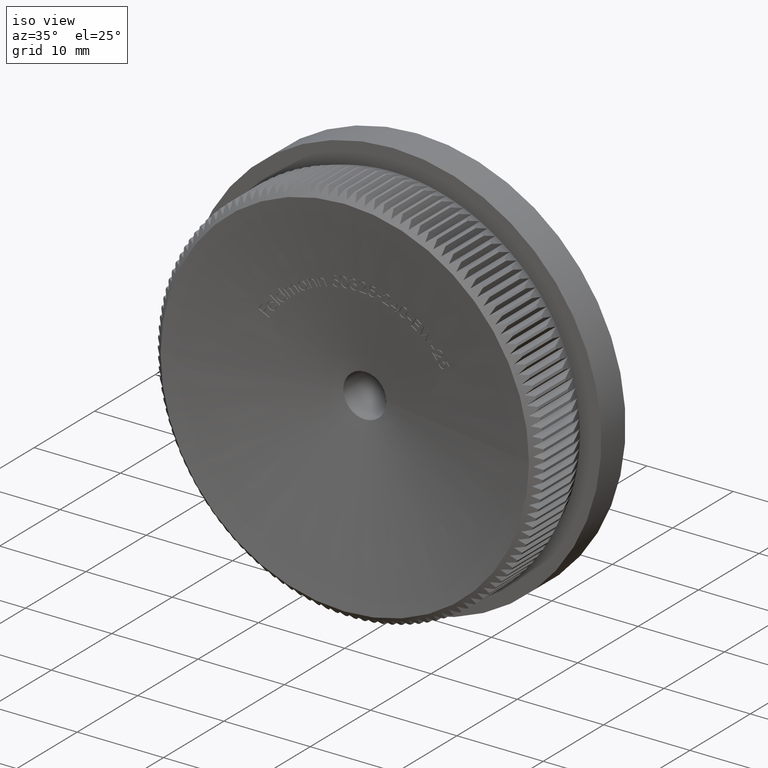
[diagram: clean part render]
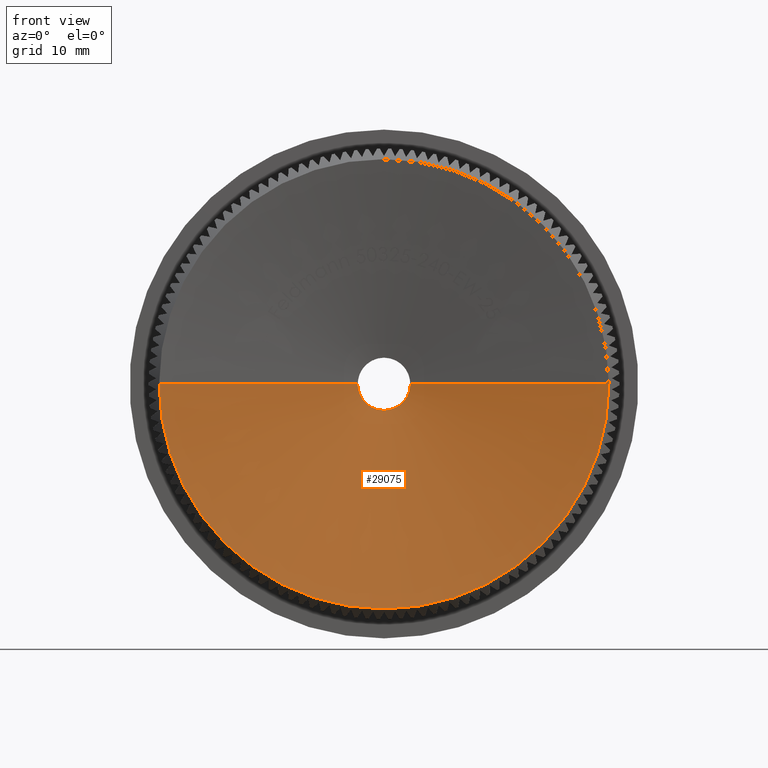
[diagram: tour spotlight — one face highlighted and labeled with its STEP entity id]
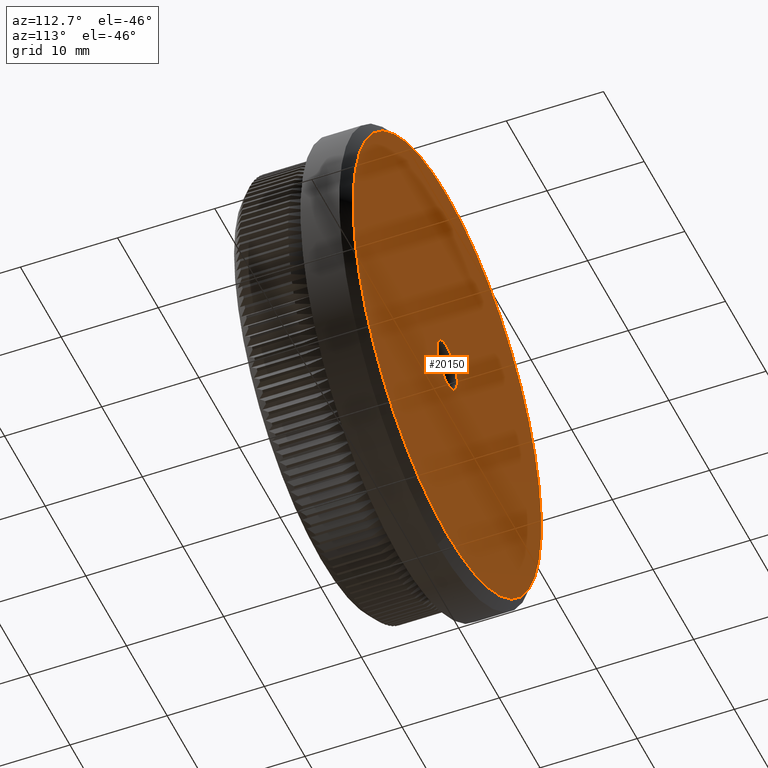
[diagram: tour spotlight — one face highlighted and labeled with its STEP entity id]
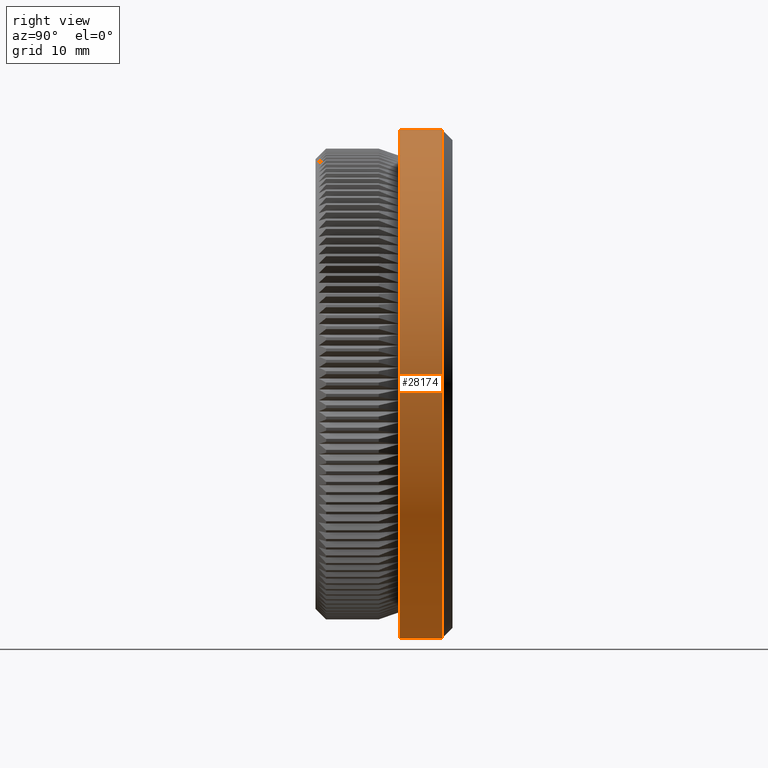
[diagram: tour spotlight — one face highlighted and labeled with its STEP entity id]
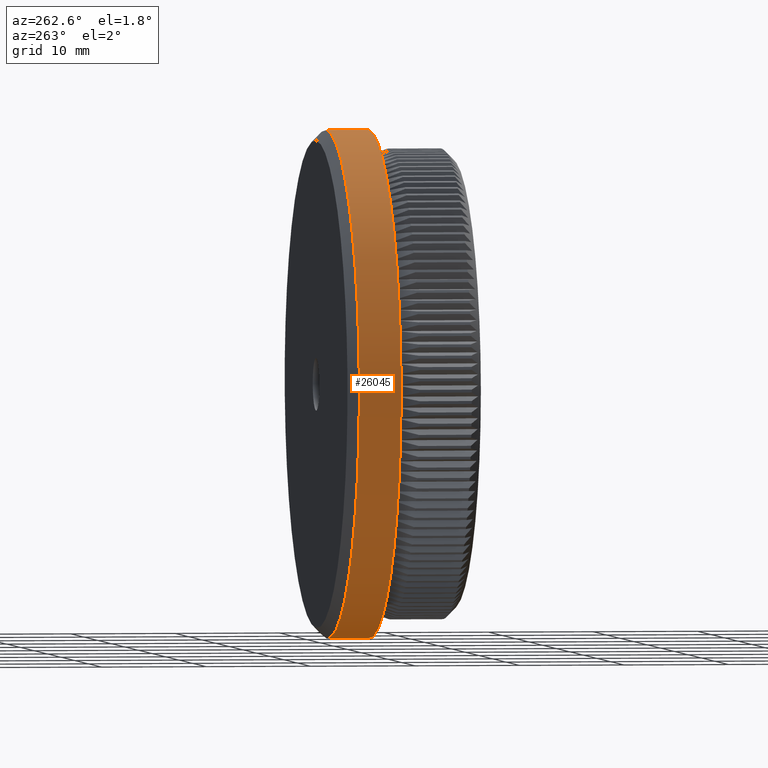
[diagram: tour spotlight — one face highlighted and labeled with its STEP entity id]
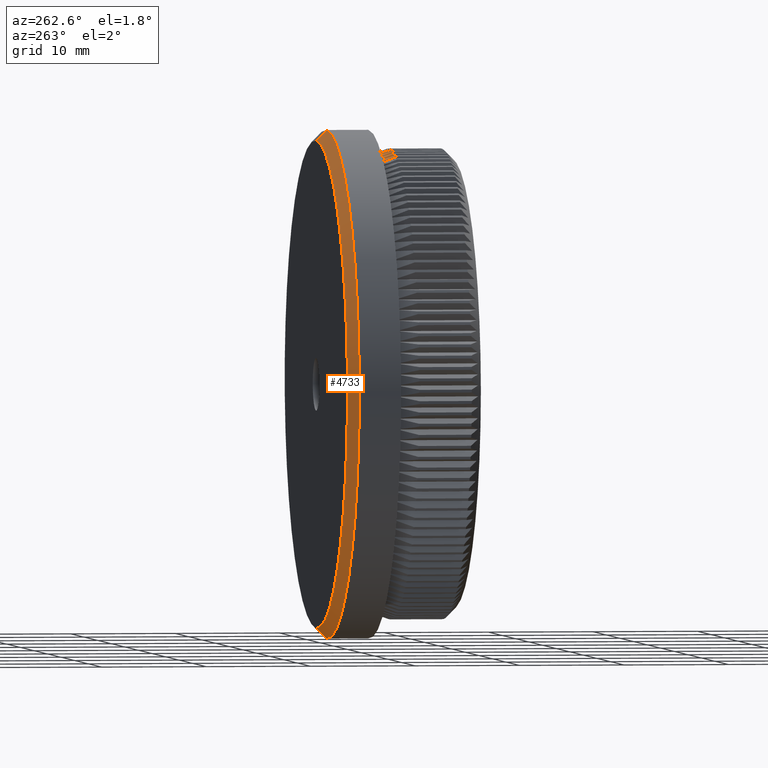
[diagram: tour spotlight — one face highlighted and labeled with its STEP entity id]
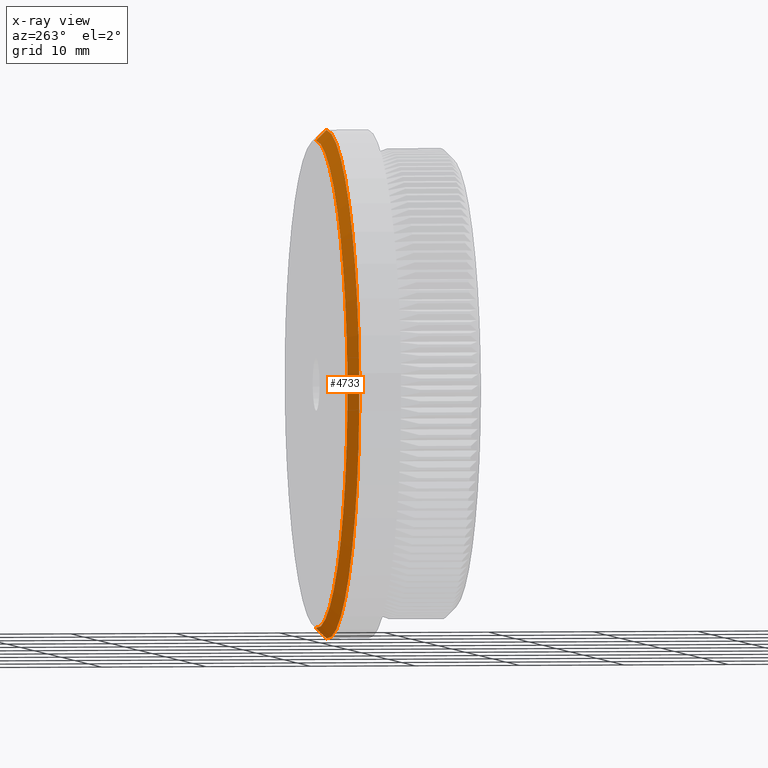
[diagram: x-ray of the same camera — body ghosted, this tour face saturated]
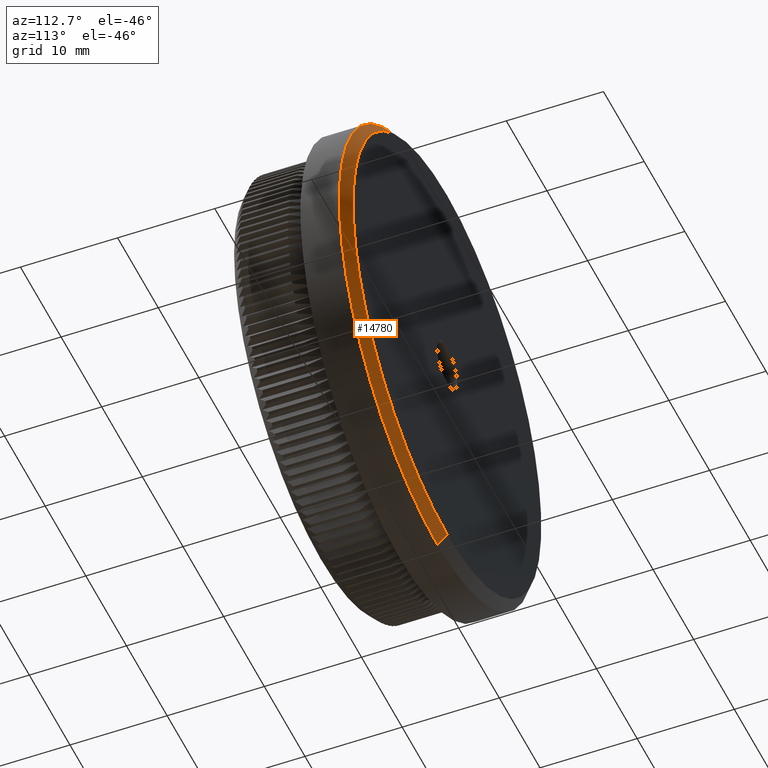
[diagram: tour spotlight — one face highlighted and labeled with its STEP entity id]
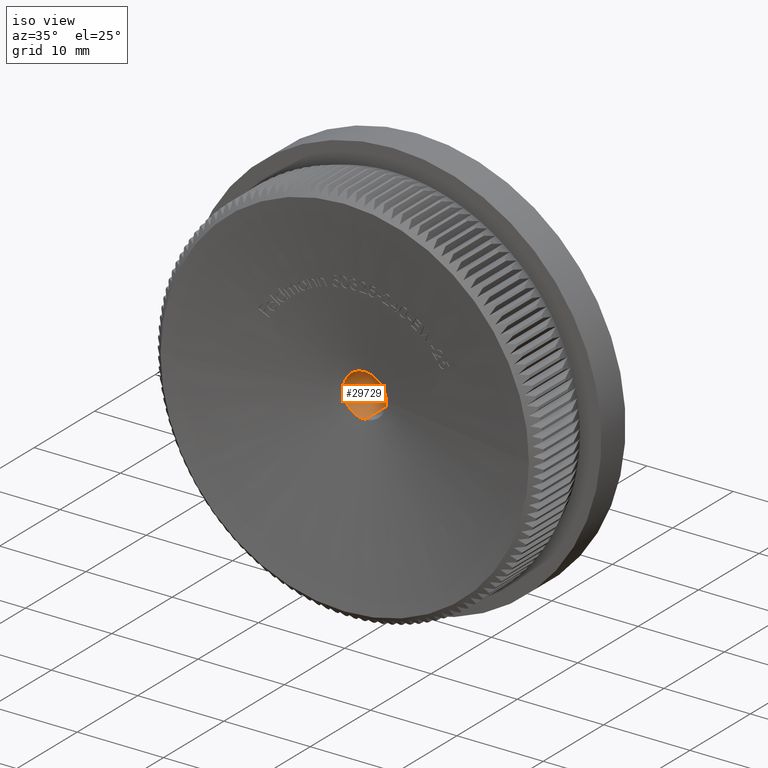
[diagram: tour spotlight — one face highlighted and labeled with its STEP entity id]
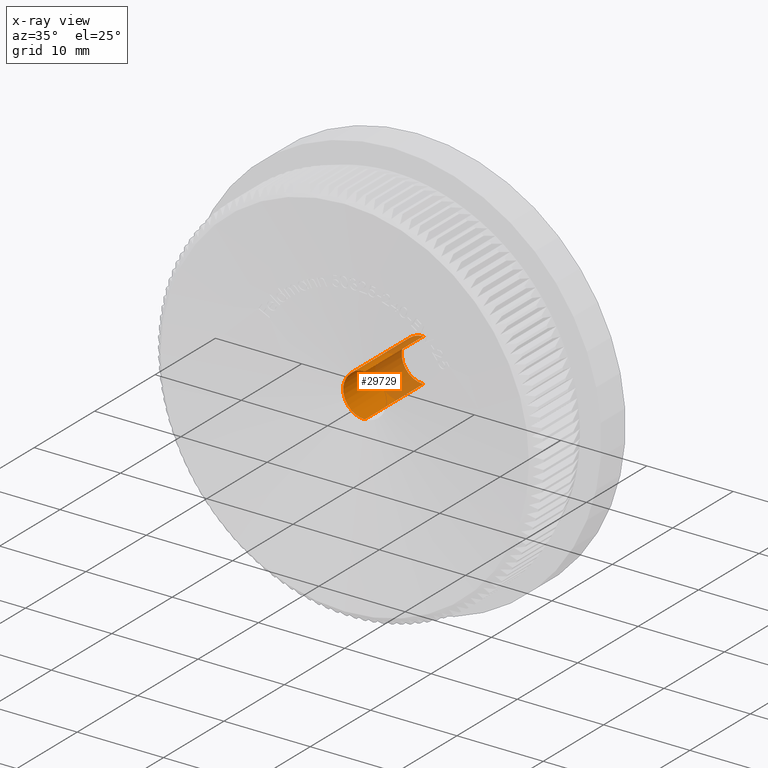
[diagram: x-ray of the same camera — body ghosted, this tour face saturated]
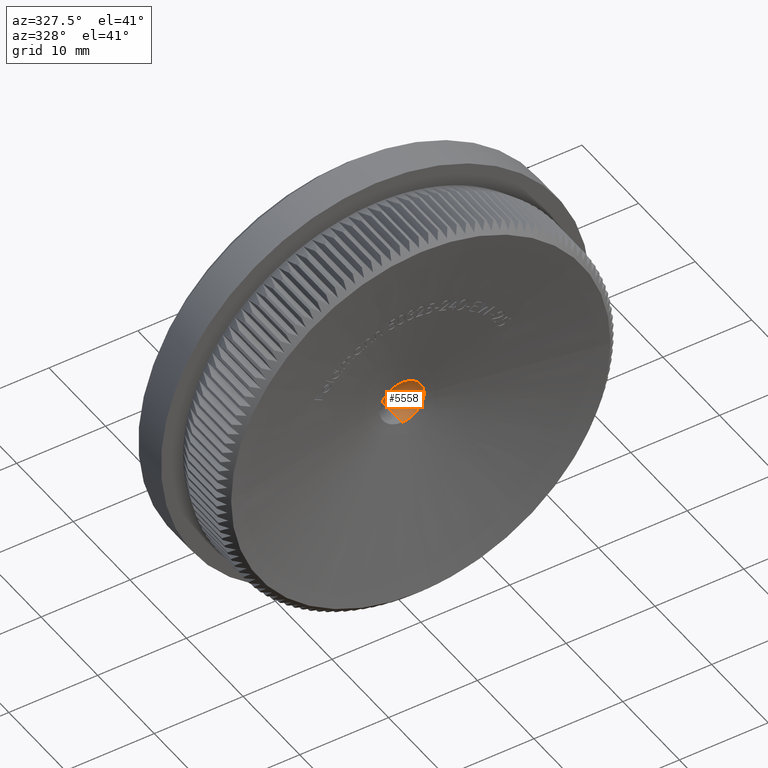
[diagram: tour spotlight — one face highlighted and labeled with its STEP entity id]
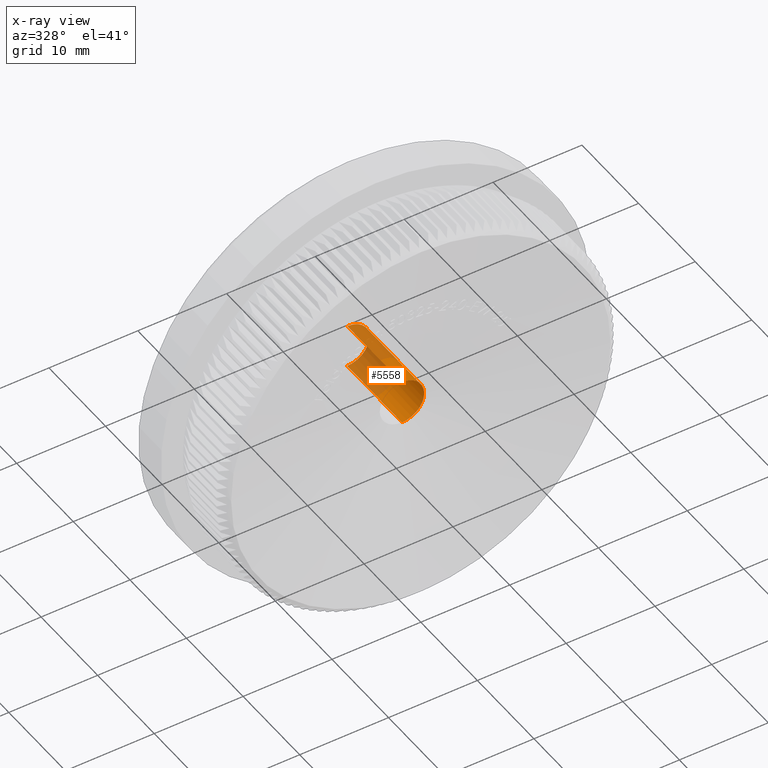
[diagram: x-ray of the same camera — body ghosted, this tour face saturated]
A machine part: a face-by-face anatomy tour. The part has 826 B-rep faces; the first image is the clean iso view, then the 8 largest visible faces are spotlighted one at a time (largest first), each with its STEP entity span.

Face 1 — front view, entity #29075. In plain terms, the highlighted conical surface has half-angle 80 deg.
Definition (entity closure, byte-faithful):
#206 = CARTESIAN_POINT ( 'NONE',  ( -21.35000000000002300, 1.243352651957104800E-015, 2.614620916179602000E-015 ) ) ;
#921 = DIRECTION ( 'NONE',  ( 1.000000000000000000, -9.759158373129756900E-018, 0.0000000000000000000 ) ) ;
#985 = CARTESIAN_POINT ( 'NONE',  ( 3.243713523407466100E-017, 3.323763586354433500, 0.0000000000000000000 ) ) ;
#1127 = VERTEX_POINT ( 'NONE', #9074 ) ;
#1253 = CARTESIAN_POINT ( 'NONE',  ( 3.243713523407466100E-017, 3.323763586354433500, 0.0000000000000000000 ) ) ;
#3390 = CARTESIAN_POINT ( 'NONE',  ( 1.010067641865872300E-032, 1.034994620690784200E-015, 0.0000000000000000000 ) ) ;
#5307 = VERTEX_POINT ( 'NONE', #7353 ) ;
#5603 = DIRECTION ( 'NONE',  ( 1.000000000000000000, -9.759158373129756900E-018, 0.0000000000000000000 ) ) ;
#7288 = EDGE_LOOP ( 'NONE', ( #12962, #8567, #8633, #19425, #8378, #17880 ) ) ;
#7353 = CARTESIAN_POINT ( 'NONE',  ( -2.500000000000000000, 3.323763586354433500, 1.460391307983221100E-015 ) ) ;
#7676 = CARTESIAN_POINT ( 'NONE',  ( 2.675853256136968700E-015, 1.034994620690784200E-015, -21.35000000000002300 ) ) ;
#7781 = CARTESIAN_POINT ( 'NONE',  ( 1.010067641865872300E-032, 1.034994620690784200E-015, 0.0000000000000000000 ) ) ;
#8295 = DIRECTION ( 'NONE',  ( 9.759158373129756900E-018, 1.000000000000000000, 0.0000000000000000000 ) ) ;
#8378 = ORIENTED_EDGE ( 'NONE', *, *, #27260, .T. ) ;
#8456 = DIRECTION ( 'NONE',  ( 9.759158373129756900E-018, 1.000000000000000000, 0.0000000000000000000 ) ) ;
#8567 = ORIENTED_EDGE ( 'NONE', *, *, #27372, .T. ) ;
#8618 = CARTESIAN_POINT ( 'NONE',  ( 2.500000000000000000, 3.323763586354433500, 0.0000000000000000000 ) ) ;
#8633 = ORIENTED_EDGE ( 'NONE', *, *, #11135, .T. ) ;
#9007 = AXIS2_PLACEMENT_3D ( 'NONE', #7781, #26507, #28884 ) ;
#9074 = CARTESIAN_POINT ( 'NONE',  ( -21.35000000000002300, 1.243352651957104800E-015, 2.614620916179602000E-015 ) ) ;
#9105 = VERTEX_POINT ( 'NONE', #26876 ) ;
#10570 = AXIS2_PLACEMENT_3D ( 'NONE', #985, #8295, #15309 ) ;
#10572 = VERTEX_POINT ( 'NONE', #8618 ) ;
#11075 = AXIS2_PLACEMENT_3D ( 'NONE', #1253, #8456, #17771 ) ;
#11135 = EDGE_CURVE ( 'NONE', #5307, #1127, #29184, .T. ) ;
#11560 = CARTESIAN_POINT ( 'NONE',  ( 21.35000000000002300, 8.266365894244636300E-016, 0.0000000000000000000 ) ) ;
#11836 = VERTEX_POINT ( 'NONE', #7676 ) ;
#12143 = EDGE_CURVE ( 'NONE', #10572, #14925, #29872, .T. ) ;
#12174 = CARTESIAN_POINT ( 'NONE',  ( 21.35000000000002300, 8.266365894244636300E-016, 0.0000000000000000000 ) ) ;
#12462 = AXIS2_PLACEMENT_3D ( 'NONE', #3390, #17344, #921 ) ;
#12508 = CIRCLE ( 'NONE', #11075, 2.500000000000000000 ) ;
#12601 = EDGE_CURVE ( 'NONE', #1127, #11836, #23237, .T. ) ;
#12962 = ORIENTED_EDGE ( 'NONE', *, *, #13576, .T. ) ;
#13576 = EDGE_CURVE ( 'NONE', #10572, #9105, #16603, .T. ) ;
#14925 = VERTEX_POINT ( 'NONE', #12174 ) ;
#15309 = DIRECTION ( 'NONE',  ( 1.000000000000000000, 0.0000000000000000000, 0.0000000000000000000 ) ) ;
#16603 = CIRCLE ( 'NONE', #10570, 2.500000000000000000 ) ;
#17284 = CONICAL_SURFACE ( 'NONE', #12462, 21.35000000000002300, 1.396263401595470700 ) ;
#17344 = DIRECTION ( 'NONE',  ( -9.759158373129756900E-018, -1.000000000000000000, -0.0000000000000000000 ) ) ;
#17723 = CIRCLE ( 'NONE', #23779, 21.35000000000002300 ) ;
#17771 = DIRECTION ( 'NONE',  ( 1.000000000000000000, 0.0000000000000000000, 0.0000000000000000000 ) ) ;
#17880 = ORIENTED_EDGE ( 'NONE', *, *, #12143, .F. ) ;
#18614 = DIRECTION ( 'NONE',  ( 0.9848077530122093500, -0.1736481776669234500, 0.0000000000000000000 ) ) ;
#19425 = ORIENTED_EDGE ( 'NONE', *, *, #12601, .T. ) ;
#19745 = DIRECTION ( 'NONE',  ( -9.759158373129756900E-018, -1.000000000000000000, -0.0000000000000000000 ) ) ;
#21046 = VECTOR ( 'NONE', #18614, 999.9999999999998900 ) ;
#22931 = VECTOR ( 'NONE', #25836, 999.9999999999998900 ) ;
#23237 = CIRCLE ( 'NONE', #9007, 21.35000000000002300 ) ;
#23779 = AXIS2_PLACEMENT_3D ( 'NONE', #26776, #19745, #5603 ) ;
#25049 = FACE_OUTER_BOUND ( 'NONE', #7288, .T. ) ;
#25836 = DIRECTION ( 'NONE',  ( -0.9848077530122093500, -0.1736481776669234500, 1.206041662501899300E-016 ) ) ;
#26507 = DIRECTION ( 'NONE',  ( -9.759158373129756900E-018, -1.000000000000000000, -0.0000000000000000000 ) ) ;
#26776 = CARTESIAN_POINT ( 'NONE',  ( 1.010067641865872300E-032, 1.034994620690784200E-015, 0.0000000000000000000 ) ) ;
#26876 = CARTESIAN_POINT ( 'NONE',  ( 3.061616997868382600E-016, 3.323763586354433500, -2.500000000000000000 ) ) ;
#27260 = EDGE_CURVE ( 'NONE', #11836, #14925, #17723, .T. ) ;
#27372 = EDGE_CURVE ( 'NONE', #9105, #5307, #12508, .T. ) ;
#28884 = DIRECTION ( 'NONE',  ( 1.000000000000000000, -9.759158373129756900E-018, 0.0000000000000000000 ) ) ;
#29075 = ADVANCED_FACE ( 'NONE', ( #25049 ), #17284, .F. ) ;
#29184 = LINE ( 'NONE', #206, #22931 ) ;
#29872 = LINE ( 'NONE', #11560, #21046 ) ;

Face 2 — auxiliary view, entity #20150. In plain terms, the highlighted planar face has unit normal (0, 1, 0).
Definition (entity closure, byte-faithful):
#259 = AXIS2_PLACEMENT_3D ( 'NONE', #2876, #14330, #19301 ) ;
#802 = VERTEX_POINT ( 'NONE', #29155 ) ;
#2750 = VERTEX_POINT ( 'NONE', #24608 ) ;
#2866 = CARTESIAN_POINT ( 'NONE',  ( 2.896289679983490000E-015, 13.00000000000000000, 23.14999999999999900 ) ) ;
#2876 = CARTESIAN_POINT ( 'NONE',  ( 0.0000000000000000000, 13.00000000000000000, 0.0000000000000000000 ) ) ;
#4059 = CIRCLE ( 'NONE', #5634, 2.500000000000000000 ) ;
#4800 = DIRECTION ( 'NONE',  ( 0.0000000000000000000, 0.0000000000000000000, 1.000000000000000000 ) ) ;
#5429 = ORIENTED_EDGE ( 'NONE', *, *, #30285, .F. ) ;
#5634 = AXIS2_PLACEMENT_3D ( 'NONE', #17132, #14936, #28810 ) ;
#8510 = CARTESIAN_POINT ( 'NONE',  ( 0.0000000000000000000, 13.00000000000000000, 2.500000000000000000 ) ) ;
#11080 = ORIENTED_EDGE ( 'NONE', *, *, #21549, .T. ) ;
#11191 = EDGE_CURVE ( 'NONE', #16712, #802, #4059, .T. ) ;
#11490 = CARTESIAN_POINT ( 'NONE',  ( 0.0000000000000000000, 13.00000000000000000, 0.0000000000000000000 ) ) ;
#12372 = EDGE_LOOP ( 'NONE', ( #11080, #19589 ) ) ;
#13981 = DIRECTION ( 'NONE',  ( 0.0000000000000000000, 1.000000000000000000, 0.0000000000000000000 ) ) ;
#14330 = DIRECTION ( 'NONE',  ( 0.0000000000000000000, 1.000000000000000000, 0.0000000000000000000 ) ) ;
#14742 = DIRECTION ( 'NONE',  ( 0.0000000000000000000, 1.000000000000000000, 0.0000000000000000000 ) ) ;
#14936 = DIRECTION ( 'NONE',  ( 0.0000000000000000000, 1.000000000000000000, 0.0000000000000000000 ) ) ;
#15753 = CIRCLE ( 'NONE', #28172, 2.500000000000000000 ) ;
#16221 = CIRCLE ( 'NONE', #27124, 23.14999999999999900 ) ;
#16266 = PLANE ( 'NONE',  #17844 ) ;
#16712 = VERTEX_POINT ( 'NONE', #8510 ) ;
#17132 = CARTESIAN_POINT ( 'NONE',  ( 0.0000000000000000000, 13.00000000000000000, 0.0000000000000000000 ) ) ;
#17844 = AXIS2_PLACEMENT_3D ( 'NONE', #11490, #13981, #27951 ) ;
#18959 = DIRECTION ( 'NONE',  ( 0.0000000000000000000, 1.000000000000000000, 0.0000000000000000000 ) ) ;
#19301 = DIRECTION ( 'NONE',  ( 0.0000000000000000000, 0.0000000000000000000, 1.000000000000000000 ) ) ;
#19589 = ORIENTED_EDGE ( 'NONE', *, *, #27647, .T. ) ;
#20150 = ADVANCED_FACE ( 'NONE', ( #25696, #23115 ), #16266, .T. ) ;
#21549 = EDGE_CURVE ( 'NONE', #2750, #22447, #23058, .T. ) ;
#21896 = DIRECTION ( 'NONE',  ( 0.0000000000000000000, 0.0000000000000000000, 1.000000000000000000 ) ) ;
#22447 = VERTEX_POINT ( 'NONE', #2866 ) ;
#23058 = CIRCLE ( 'NONE', #259, 23.14999999999999900 ) ;
#23115 = FACE_OUTER_BOUND ( 'NONE', #12372, .T. ) ;
#24363 = CARTESIAN_POINT ( 'NONE',  ( 0.0000000000000000000, 13.00000000000000000, 0.0000000000000000000 ) ) ;
#24369 = ORIENTED_EDGE ( 'NONE', *, *, #11191, .F. ) ;
#24608 = CARTESIAN_POINT ( 'NONE',  ( 0.0000000000000000000, 13.00000000000000000, -23.14999999999999900 ) ) ;
#25696 = FACE_BOUND ( 'NONE', #28997, .T. ) ;
#26490 = CARTESIAN_POINT ( 'NONE',  ( 0.0000000000000000000, 13.00000000000000000, 0.0000000000000000000 ) ) ;
#27124 = AXIS2_PLACEMENT_3D ( 'NONE', #24363, #14742, #21896 ) ;
#27647 = EDGE_CURVE ( 'NONE', #22447, #2750, #16221, .T. ) ;
#27951 = DIRECTION ( 'NONE',  ( 0.0000000000000000000, -0.0000000000000000000, 1.000000000000000000 ) ) ;
#28172 = AXIS2_PLACEMENT_3D ( 'NONE', #26490, #18959, #4800 ) ;
#28810 = DIRECTION ( 'NONE',  ( 0.0000000000000000000, 0.0000000000000000000, 1.000000000000000000 ) ) ;
#28997 = EDGE_LOOP ( 'NONE', ( #24369, #5429 ) ) ;
#29155 = CARTESIAN_POINT ( 'NONE',  ( 3.061616997868382600E-016, 13.00000000000000000, -2.500000000000000000 ) ) ;
#30285 = EDGE_CURVE ( 'NONE', #802, #16712, #15753, .T. ) ;

Face 3 — right view, entity #28174. In plain terms, the highlighted cylindrical surface (partial cylindrical patch) has radius 24.15 mm, axis along (-0, -1, -0).
Definition (entity closure, byte-faithful):
#1197 = EDGE_LOOP ( 'NONE', ( #15030, #30284, #26270, #27716 ) ) ;
#2500 = DIRECTION ( 'NONE',  ( -0.0000000000000000000, -1.000000000000000000, -0.0000000000000000000 ) ) ;
#2584 = AXIS2_PLACEMENT_3D ( 'NONE', #24906, #10731, #6001 ) ;
#3276 = DIRECTION ( 'NONE',  ( -0.0000000000000000000, -1.000000000000000000, -0.0000000000000000000 ) ) ;
#3595 = DIRECTION ( 'NONE',  ( -0.0000000000000000000, -1.000000000000000000, -0.0000000000000000000 ) ) ;
#4071 = EDGE_CURVE ( 'NONE', #23029, #4323, #5463, .T. ) ;
#4323 = VERTEX_POINT ( 'NONE', #5087 ) ;
#5087 = CARTESIAN_POINT ( 'NONE',  ( 0.0000000000000000000, 8.000000000000000000, -24.14999999999999900 ) ) ;
#5168 = CARTESIAN_POINT ( 'NONE',  ( 0.0000000000000000000, 0.0000000000000000000, 0.0000000000000000000 ) ) ;
#5463 = LINE ( 'NONE', #19500, #30565 ) ;
#6001 = DIRECTION ( 'NONE',  ( 0.0000000000000000000, 0.0000000000000000000, -1.000000000000000000 ) ) ;
#6379 = LINE ( 'NONE', #16672, #23019 ) ;
#6617 = CYLINDRICAL_SURFACE ( 'NONE', #25179, 24.14999999999999900 ) ;
#7480 = VERTEX_POINT ( 'NONE', #28310 ) ;
#8257 = EDGE_CURVE ( 'NONE', #15284, #7480, #6379, .T. ) ;
#8389 = EDGE_CURVE ( 'NONE', #4323, #7480, #28199, .T. ) ;
#9985 = DIRECTION ( 'NONE',  ( 0.0000000000000000000, 0.0000000000000000000, -1.000000000000000000 ) ) ;
#10731 = DIRECTION ( 'NONE',  ( -0.0000000000000000000, -1.000000000000000000, -0.0000000000000000000 ) ) ;
#15030 = ORIENTED_EDGE ( 'NONE', *, *, #15153, .T. ) ;
#15153 = EDGE_CURVE ( 'NONE', #23029, #15284, #17280, .T. ) ;
#15284 = VERTEX_POINT ( 'NONE', #15871 ) ;
#15871 = CARTESIAN_POINT ( 'NONE',  ( 2.957522019940857900E-015, 11.99999999999999500, 24.14999999999999900 ) ) ;
#16672 = CARTESIAN_POINT ( 'NONE',  ( 2.957522019940857900E-015, 0.0000000000000000000, 24.14999999999999900 ) ) ;
#17280 = CIRCLE ( 'NONE', #30223, 24.14999999999999900 ) ;
#19500 = CARTESIAN_POINT ( 'NONE',  ( 0.0000000000000000000, 0.0000000000000000000, -24.14999999999999900 ) ) ;
#23019 = VECTOR ( 'NONE', #2500, 1000.000000000000000 ) ;
#23029 = VERTEX_POINT ( 'NONE', #29446 ) ;
#24906 = CARTESIAN_POINT ( 'NONE',  ( 0.0000000000000000000, 8.000000000000000000, 0.0000000000000000000 ) ) ;
#24980 = DIRECTION ( 'NONE',  ( 0.0000000000000000000, 0.0000000000000000000, 1.000000000000000000 ) ) ;
#25179 = AXIS2_PLACEMENT_3D ( 'NONE', #5168, #26552, #9985 ) ;
#26270 = ORIENTED_EDGE ( 'NONE', *, *, #8389, .F. ) ;
#26552 = DIRECTION ( 'NONE',  ( -0.0000000000000000000, -1.000000000000000000, -0.0000000000000000000 ) ) ;
#27716 = ORIENTED_EDGE ( 'NONE', *, *, #4071, .F. ) ;
#28174 = ADVANCED_FACE ( 'NONE', ( #28442 ), #6617, .T. ) ;
#28199 = CIRCLE ( 'NONE', #2584, 24.14999999999999900 ) ;
#28310 = CARTESIAN_POINT ( 'NONE',  ( 2.957522019940857900E-015, 8.000000000000000000, 24.14999999999999900 ) ) ;
#28442 = FACE_OUTER_BOUND ( 'NONE', #1197, .T. ) ;
#29309 = CARTESIAN_POINT ( 'NONE',  ( 0.0000000000000000000, 11.99999999999999500, 0.0000000000000000000 ) ) ;
#29446 = CARTESIAN_POINT ( 'NONE',  ( 0.0000000000000000000, 11.99999999999999500, -24.14999999999999900 ) ) ;
#30223 = AXIS2_PLACEMENT_3D ( 'NONE', #29309, #3595, #24980 ) ;
#30284 = ORIENTED_EDGE ( 'NONE', *, *, #8257, .T. ) ;
#30565 = VECTOR ( 'NONE', #3276, 1000.000000000000000 ) ;

Face 4 — auxiliary view, entity #26045. In plain terms, the highlighted cylindrical surface (partial cylindrical patch) has radius 24.15 mm, axis along (-0, -1, -0).
Definition (entity closure, byte-faithful):
#1015 = AXIS2_PLACEMENT_3D ( 'NONE', #25763, #11558, #23786 ) ;
#2500 = DIRECTION ( 'NONE',  ( -0.0000000000000000000, -1.000000000000000000, -0.0000000000000000000 ) ) ;
#3276 = DIRECTION ( 'NONE',  ( -0.0000000000000000000, -1.000000000000000000, -0.0000000000000000000 ) ) ;
#3652 = EDGE_LOOP ( 'NONE', ( #17181, #23980, #28447, #8383 ) ) ;
#4071 = EDGE_CURVE ( 'NONE', #23029, #4323, #5463, .T. ) ;
#4323 = VERTEX_POINT ( 'NONE', #5087 ) ;
#4778 = AXIS2_PLACEMENT_3D ( 'NONE', #25253, #15828, #13633 ) ;
#5087 = CARTESIAN_POINT ( 'NONE',  ( 0.0000000000000000000, 8.000000000000000000, -24.14999999999999900 ) ) ;
#5097 = EDGE_CURVE ( 'NONE', #15284, #23029, #18716, .T. ) ;
#5463 = LINE ( 'NONE', #19500, #30565 ) ;
#6379 = LINE ( 'NONE', #16672, #23019 ) ;
#7480 = VERTEX_POINT ( 'NONE', #28310 ) ;
#8257 = EDGE_CURVE ( 'NONE', #15284, #7480, #6379, .T. ) ;
#8383 = ORIENTED_EDGE ( 'NONE', *, *, #19274, .F. ) ;
#8877 = CYLINDRICAL_SURFACE ( 'NONE', #17214, 24.14999999999999900 ) ;
#10566 = CARTESIAN_POINT ( 'NONE',  ( 0.0000000000000000000, 0.0000000000000000000, 0.0000000000000000000 ) ) ;
#11558 = DIRECTION ( 'NONE',  ( -0.0000000000000000000, -1.000000000000000000, -0.0000000000000000000 ) ) ;
#13633 = DIRECTION ( 'NONE',  ( 0.0000000000000000000, 0.0000000000000000000, 1.000000000000000000 ) ) ;
#14072 = FACE_OUTER_BOUND ( 'NONE', #3652, .T. ) ;
#15284 = VERTEX_POINT ( 'NONE', #15871 ) ;
#15828 = DIRECTION ( 'NONE',  ( -0.0000000000000000000, -1.000000000000000000, -0.0000000000000000000 ) ) ;
#15836 = DIRECTION ( 'NONE',  ( 0.0000000000000000000, 0.0000000000000000000, -1.000000000000000000 ) ) ;
#15871 = CARTESIAN_POINT ( 'NONE',  ( 2.957522019940857900E-015, 11.99999999999999500, 24.14999999999999900 ) ) ;
#16672 = CARTESIAN_POINT ( 'NONE',  ( 2.957522019940857900E-015, 0.0000000000000000000, 24.14999999999999900 ) ) ;
#17181 = ORIENTED_EDGE ( 'NONE', *, *, #8257, .F. ) ;
#17214 = AXIS2_PLACEMENT_3D ( 'NONE', #10566, #24851, #15836 ) ;
#18716 = CIRCLE ( 'NONE', #4778, 24.14999999999999900 ) ;
#19274 = EDGE_CURVE ( 'NONE', #7480, #4323, #20158, .T. ) ;
#19500 = CARTESIAN_POINT ( 'NONE',  ( 0.0000000000000000000, 0.0000000000000000000, -24.14999999999999900 ) ) ;
#20158 = CIRCLE ( 'NONE', #1015, 24.14999999999999900 ) ;
#23019 = VECTOR ( 'NONE', #2500, 1000.000000000000000 ) ;
#23029 = VERTEX_POINT ( 'NONE', #29446 ) ;
#23786 = DIRECTION ( 'NONE',  ( 0.0000000000000000000, 0.0000000000000000000, -1.000000000000000000 ) ) ;
#23980 = ORIENTED_EDGE ( 'NONE', *, *, #5097, .T. ) ;
#24851 = DIRECTION ( 'NONE',  ( -0.0000000000000000000, -1.000000000000000000, -0.0000000000000000000 ) ) ;
#25253 = CARTESIAN_POINT ( 'NONE',  ( 0.0000000000000000000, 11.99999999999999500, 0.0000000000000000000 ) ) ;
#25763 = CARTESIAN_POINT ( 'NONE',  ( 0.0000000000000000000, 8.000000000000000000, 0.0000000000000000000 ) ) ;
#26045 = ADVANCED_FACE ( 'NONE', ( #14072 ), #8877, .T. ) ;
#28310 = CARTESIAN_POINT ( 'NONE',  ( 2.957522019940857900E-015, 8.000000000000000000, 24.14999999999999900 ) ) ;
#28447 = ORIENTED_EDGE ( 'NONE', *, *, #4071, .T. ) ;
#29446 = CARTESIAN_POINT ( 'NONE',  ( 0.0000000000000000000, 11.99999999999999500, -24.14999999999999900 ) ) ;
#30565 = VECTOR ( 'NONE', #3276, 1000.000000000000000 ) ;

Face 5 — auxiliary view, entity #4733. An x-ray twin of the same camera follows (body ghosted, this face saturated) — the face is partly hidden behind the body. In plain terms, the highlighted conical surface has half-angle 45 deg.
Definition (entity closure, byte-faithful):
#259 = AXIS2_PLACEMENT_3D ( 'NONE', #2876, #14330, #19301 ) ;
#2741 = DIRECTION ( 'NONE',  ( 8.659560562354918100E-017, -0.7071067811865487900, 0.7071067811865463500 ) ) ;
#2750 = VERTEX_POINT ( 'NONE', #24608 ) ;
#2866 = CARTESIAN_POINT ( 'NONE',  ( 2.896289679983490000E-015, 13.00000000000000000, 23.14999999999999900 ) ) ;
#2876 = CARTESIAN_POINT ( 'NONE',  ( 0.0000000000000000000, 13.00000000000000000, 0.0000000000000000000 ) ) ;
#4329 = DIRECTION ( 'NONE',  ( 0.0000000000000000000, 0.0000000000000000000, -1.000000000000000000 ) ) ;
#4733 = ADVANCED_FACE ( 'NONE', ( #8371 ), #20979, .T. ) ;
#4778 = AXIS2_PLACEMENT_3D ( 'NONE', #25253, #15828, #13633 ) ;
#5047 = CARTESIAN_POINT ( 'NONE',  ( 0.0000000000000000000, 11.99999999999999500, -24.14999999999999900 ) ) ;
#5097 = EDGE_CURVE ( 'NONE', #15284, #23029, #18716, .T. ) ;
#6270 = ORIENTED_EDGE ( 'NONE', *, *, #5097, .F. ) ;
#8371 = FACE_OUTER_BOUND ( 'NONE', #29330, .T. ) ;
#9430 = CARTESIAN_POINT ( 'NONE',  ( 2.957522019940857900E-015, 11.99999999999999500, 24.14999999999999900 ) ) ;
#13399 = EDGE_CURVE ( 'NONE', #22447, #15284, #29876, .T. ) ;
#13633 = DIRECTION ( 'NONE',  ( 0.0000000000000000000, 0.0000000000000000000, 1.000000000000000000 ) ) ;
#14330 = DIRECTION ( 'NONE',  ( 0.0000000000000000000, 1.000000000000000000, 0.0000000000000000000 ) ) ;
#14642 = ORIENTED_EDGE ( 'NONE', *, *, #16503, .T. ) ;
#15284 = VERTEX_POINT ( 'NONE', #15871 ) ;
#15828 = DIRECTION ( 'NONE',  ( -0.0000000000000000000, -1.000000000000000000, -0.0000000000000000000 ) ) ;
#15871 = CARTESIAN_POINT ( 'NONE',  ( 2.957522019940857900E-015, 11.99999999999999500, 24.14999999999999900 ) ) ;
#16503 = EDGE_CURVE ( 'NONE', #2750, #23029, #29758, .T. ) ;
#18438 = AXIS2_PLACEMENT_3D ( 'NONE', #25314, #30328, #4329 ) ;
#18716 = CIRCLE ( 'NONE', #4778, 24.14999999999999900 ) ;
#19301 = DIRECTION ( 'NONE',  ( 0.0000000000000000000, 0.0000000000000000000, 1.000000000000000000 ) ) ;
#20979 = CONICAL_SURFACE ( 'NONE', #18438, 24.14999999999999900, 0.7853981633974466100 ) ;
#21549 = EDGE_CURVE ( 'NONE', #2750, #22447, #23058, .T. ) ;
#22311 = ORIENTED_EDGE ( 'NONE', *, *, #21549, .F. ) ;
#22447 = VERTEX_POINT ( 'NONE', #2866 ) ;
#23029 = VERTEX_POINT ( 'NONE', #29446 ) ;
#23058 = CIRCLE ( 'NONE', #259, 23.14999999999999900 ) ;
#23950 = VECTOR ( 'NONE', #2741, 1000.000000000000000 ) ;
#23954 = DIRECTION ( 'NONE',  ( 0.0000000000000000000, -0.7071067811865487900, -0.7071067811865463500 ) ) ;
#24608 = CARTESIAN_POINT ( 'NONE',  ( 0.0000000000000000000, 13.00000000000000000, -23.14999999999999900 ) ) ;
#25253 = CARTESIAN_POINT ( 'NONE',  ( 0.0000000000000000000, 11.99999999999999500, 0.0000000000000000000 ) ) ;
#25314 = CARTESIAN_POINT ( 'NONE',  ( 0.0000000000000000000, 11.99999999999999500, 0.0000000000000000000 ) ) ;
#26478 = ORIENTED_EDGE ( 'NONE', *, *, #13399, .F. ) ;
#29330 = EDGE_LOOP ( 'NONE', ( #26478, #22311, #14642, #6270 ) ) ;
#29405 = VECTOR ( 'NONE', #23954, 1000.000000000000000 ) ;
#29446 = CARTESIAN_POINT ( 'NONE',  ( 0.0000000000000000000, 11.99999999999999500, -24.14999999999999900 ) ) ;
#29758 = LINE ( 'NONE', #5047, #29405 ) ;
#29876 = LINE ( 'NONE', #9430, #23950 ) ;
#30328 = DIRECTION ( 'NONE',  ( -0.0000000000000000000, -1.000000000000000000, -0.0000000000000000000 ) ) ;

Face 6 — auxiliary view, entity #14780. In plain terms, the highlighted conical surface has half-angle 45 deg.
Definition (entity closure, byte-faithful):
#772 = ORIENTED_EDGE ( 'NONE', *, *, #13399, .T. ) ;
#2325 = AXIS2_PLACEMENT_3D ( 'NONE', #27298, #13407, #29644 ) ;
#2741 = DIRECTION ( 'NONE',  ( 8.659560562354918100E-017, -0.7071067811865487900, 0.7071067811865463500 ) ) ;
#2750 = VERTEX_POINT ( 'NONE', #24608 ) ;
#2866 = CARTESIAN_POINT ( 'NONE',  ( 2.896289679983490000E-015, 13.00000000000000000, 23.14999999999999900 ) ) ;
#3595 = DIRECTION ( 'NONE',  ( -0.0000000000000000000, -1.000000000000000000, -0.0000000000000000000 ) ) ;
#5047 = CARTESIAN_POINT ( 'NONE',  ( 0.0000000000000000000, 11.99999999999999500, -24.14999999999999900 ) ) ;
#6575 = FACE_OUTER_BOUND ( 'NONE', #10389, .T. ) ;
#9430 = CARTESIAN_POINT ( 'NONE',  ( 2.957522019940857900E-015, 11.99999999999999500, 24.14999999999999900 ) ) ;
#10389 = EDGE_LOOP ( 'NONE', ( #29442, #772, #14091, #14706 ) ) ;
#13399 = EDGE_CURVE ( 'NONE', #22447, #15284, #29876, .T. ) ;
#13407 = DIRECTION ( 'NONE',  ( -0.0000000000000000000, -1.000000000000000000, -0.0000000000000000000 ) ) ;
#14091 = ORIENTED_EDGE ( 'NONE', *, *, #15153, .F. ) ;
#14706 = ORIENTED_EDGE ( 'NONE', *, *, #16503, .F. ) ;
#14742 = DIRECTION ( 'NONE',  ( 0.0000000000000000000, 1.000000000000000000, 0.0000000000000000000 ) ) ;
#14780 = ADVANCED_FACE ( 'NONE', ( #6575 ), #20239, .T. ) ;
#15153 = EDGE_CURVE ( 'NONE', #23029, #15284, #17280, .T. ) ;
#15284 = VERTEX_POINT ( 'NONE', #15871 ) ;
#15871 = CARTESIAN_POINT ( 'NONE',  ( 2.957522019940857900E-015, 11.99999999999999500, 24.14999999999999900 ) ) ;
#16221 = CIRCLE ( 'NONE', #27124, 23.14999999999999900 ) ;
#16503 = EDGE_CURVE ( 'NONE', #2750, #23029, #29758, .T. ) ;
#17280 = CIRCLE ( 'NONE', #30223, 24.14999999999999900 ) ;
#20239 = CONICAL_SURFACE ( 'NONE', #2325, 24.14999999999999900, 0.7853981633974466100 ) ;
#21896 = DIRECTION ( 'NONE',  ( 0.0000000000000000000, 0.0000000000000000000, 1.000000000000000000 ) ) ;
#22447 = VERTEX_POINT ( 'NONE', #2866 ) ;
#23029 = VERTEX_POINT ( 'NONE', #29446 ) ;
#23950 = VECTOR ( 'NONE', #2741, 1000.000000000000000 ) ;
#23954 = DIRECTION ( 'NONE',  ( 0.0000000000000000000, -0.7071067811865487900, -0.7071067811865463500 ) ) ;
#24363 = CARTESIAN_POINT ( 'NONE',  ( 0.0000000000000000000, 13.00000000000000000, 0.0000000000000000000 ) ) ;
#24608 = CARTESIAN_POINT ( 'NONE',  ( 0.0000000000000000000, 13.00000000000000000, -23.14999999999999900 ) ) ;
#24980 = DIRECTION ( 'NONE',  ( 0.0000000000000000000, 0.0000000000000000000, 1.000000000000000000 ) ) ;
#27124 = AXIS2_PLACEMENT_3D ( 'NONE', #24363, #14742, #21896 ) ;
#27298 = CARTESIAN_POINT ( 'NONE',  ( 0.0000000000000000000, 11.99999999999999500, 0.0000000000000000000 ) ) ;
#27647 = EDGE_CURVE ( 'NONE', #22447, #2750, #16221, .T. ) ;
#29309 = CARTESIAN_POINT ( 'NONE',  ( 0.0000000000000000000, 11.99999999999999500, 0.0000000000000000000 ) ) ;
#29405 = VECTOR ( 'NONE', #23954, 1000.000000000000000 ) ;
#29442 = ORIENTED_EDGE ( 'NONE', *, *, #27647, .F. ) ;
#29446 = CARTESIAN_POINT ( 'NONE',  ( 0.0000000000000000000, 11.99999999999999500, -24.14999999999999900 ) ) ;
#29644 = DIRECTION ( 'NONE',  ( 0.0000000000000000000, 0.0000000000000000000, -1.000000000000000000 ) ) ;
#29758 = LINE ( 'NONE', #5047, #29405 ) ;
#29876 = LINE ( 'NONE', #9430, #23950 ) ;
#30223 = AXIS2_PLACEMENT_3D ( 'NONE', #29309, #3595, #24980 ) ;

Face 7 — iso view, entity #29729. An x-ray twin of the same camera follows (body ghosted, this face saturated) — the face is partly hidden behind the body. In plain terms, the highlighted cylindrical surface (edge-blend (fillet) strip) has radius 2.5 mm, axis along (-0, 1, -0).
Definition (entity closure, byte-faithful):
#802 = VERTEX_POINT ( 'NONE', #29155 ) ;
#1253 = CARTESIAN_POINT ( 'NONE',  ( 3.243713523407466100E-017, 3.323763586354433500, 0.0000000000000000000 ) ) ;
#1717 = EDGE_CURVE ( 'NONE', #9105, #802, #3660, .T. ) ;
#2012 = AXIS2_PLACEMENT_3D ( 'NONE', #3191, #24578, #17241 ) ;
#3191 = CARTESIAN_POINT ( 'NONE',  ( 3.243713523407466100E-017, 3.323763586354433500, 0.0000000000000000000 ) ) ;
#3660 = LINE ( 'NONE', #4579, #10665 ) ;
#4266 = CARTESIAN_POINT ( 'NONE',  ( 0.0000000000000000000, 3.323763586354433500, 2.500000000000000000 ) ) ;
#4579 = CARTESIAN_POINT ( 'NONE',  ( 3.061616997868382600E-016, 0.0000000000000000000, -2.500000000000000000 ) ) ;
#4727 = EDGE_LOOP ( 'NONE', ( #22651, #28657, #6154, #9330, #19354 ) ) ;
#4800 = DIRECTION ( 'NONE',  ( 0.0000000000000000000, 0.0000000000000000000, 1.000000000000000000 ) ) ;
#5307 = VERTEX_POINT ( 'NONE', #7353 ) ;
#5431 = CYLINDRICAL_SURFACE ( 'NONE', #20233, 2.500000000000000000 ) ;
#6154 = ORIENTED_EDGE ( 'NONE', *, *, #30285, .T. ) ;
#7353 = CARTESIAN_POINT ( 'NONE',  ( -2.500000000000000000, 3.323763586354433500, 1.460391307983221100E-015 ) ) ;
#7447 = CARTESIAN_POINT ( 'NONE',  ( 0.0000000000000000000, 0.0000000000000000000, 2.500000000000000000 ) ) ;
#8456 = DIRECTION ( 'NONE',  ( 9.759158373129756900E-018, 1.000000000000000000, 0.0000000000000000000 ) ) ;
#8510 = CARTESIAN_POINT ( 'NONE',  ( 0.0000000000000000000, 13.00000000000000000, 2.500000000000000000 ) ) ;
#9105 = VERTEX_POINT ( 'NONE', #26876 ) ;
#9330 = ORIENTED_EDGE ( 'NONE', *, *, #10060, .F. ) ;
#10060 = EDGE_CURVE ( 'NONE', #24450, #16712, #22572, .T. ) ;
#10665 = VECTOR ( 'NONE', #11993, 1000.000000000000000 ) ;
#11075 = AXIS2_PLACEMENT_3D ( 'NONE', #1253, #8456, #17771 ) ;
#11993 = DIRECTION ( 'NONE',  ( -0.0000000000000000000, 1.000000000000000000, -0.0000000000000000000 ) ) ;
#12508 = CIRCLE ( 'NONE', #11075, 2.500000000000000000 ) ;
#13850 = DIRECTION ( 'NONE',  ( -0.0000000000000000000, 1.000000000000000000, -0.0000000000000000000 ) ) ;
#15045 = CIRCLE ( 'NONE', #2012, 2.500000000000000000 ) ;
#15753 = CIRCLE ( 'NONE', #28172, 2.500000000000000000 ) ;
#16143 = DIRECTION ( 'NONE',  ( 0.0000000000000000000, 0.0000000000000000000, 1.000000000000000000 ) ) ;
#16712 = VERTEX_POINT ( 'NONE', #8510 ) ;
#17241 = DIRECTION ( 'NONE',  ( 1.000000000000000000, 0.0000000000000000000, 0.0000000000000000000 ) ) ;
#17401 = VECTOR ( 'NONE', #19322, 1000.000000000000000 ) ;
#17771 = DIRECTION ( 'NONE',  ( 1.000000000000000000, 0.0000000000000000000, 0.0000000000000000000 ) ) ;
#18959 = DIRECTION ( 'NONE',  ( 0.0000000000000000000, 1.000000000000000000, 0.0000000000000000000 ) ) ;
#19322 = DIRECTION ( 'NONE',  ( -0.0000000000000000000, 1.000000000000000000, -0.0000000000000000000 ) ) ;
#19354 = ORIENTED_EDGE ( 'NONE', *, *, #29011, .F. ) ;
#20233 = AXIS2_PLACEMENT_3D ( 'NONE', #27939, #13850, #16143 ) ;
#22572 = LINE ( 'NONE', #7447, #17401 ) ;
#22651 = ORIENTED_EDGE ( 'NONE', *, *, #27372, .F. ) ;
#24450 = VERTEX_POINT ( 'NONE', #4266 ) ;
#24578 = DIRECTION ( 'NONE',  ( 9.759158373129756900E-018, 1.000000000000000000, 0.0000000000000000000 ) ) ;
#26490 = CARTESIAN_POINT ( 'NONE',  ( 0.0000000000000000000, 13.00000000000000000, 0.0000000000000000000 ) ) ;
#26514 = FACE_OUTER_BOUND ( 'NONE', #4727, .T. ) ;
#26876 = CARTESIAN_POINT ( 'NONE',  ( 3.061616997868382600E-016, 3.323763586354433500, -2.500000000000000000 ) ) ;
#27372 = EDGE_CURVE ( 'NONE', #9105, #5307, #12508, .T. ) ;
#27939 = CARTESIAN_POINT ( 'NONE',  ( 0.0000000000000000000, 0.0000000000000000000, 0.0000000000000000000 ) ) ;
#28172 = AXIS2_PLACEMENT_3D ( 'NONE', #26490, #18959, #4800 ) ;
#28657 = ORIENTED_EDGE ( 'NONE', *, *, #1717, .T. ) ;
#29011 = EDGE_CURVE ( 'NONE', #5307, #24450, #15045, .T. ) ;
#29155 = CARTESIAN_POINT ( 'NONE',  ( 3.061616997868382600E-016, 13.00000000000000000, -2.500000000000000000 ) ) ;
#29729 = ADVANCED_FACE ( 'NONE', ( #26514 ), #5431, .F. ) ;
#30285 = EDGE_CURVE ( 'NONE', #802, #16712, #15753, .T. ) ;

Face 8 — auxiliary view, entity #5558. An x-ray twin of the same camera follows (body ghosted, this face saturated) — the face is partly hidden behind the body. In plain terms, the highlighted cylindrical surface (edge-blend (fillet) strip) has radius 2.5 mm, axis along (-0, 1, -0).
Definition (entity closure, byte-faithful):
#802 = VERTEX_POINT ( 'NONE', #29155 ) ;
#985 = CARTESIAN_POINT ( 'NONE',  ( 3.243713523407466100E-017, 3.323763586354433500, 0.0000000000000000000 ) ) ;
#1717 = EDGE_CURVE ( 'NONE', #9105, #802, #3660, .T. ) ;
#3660 = LINE ( 'NONE', #4579, #10665 ) ;
#4059 = CIRCLE ( 'NONE', #5634, 2.500000000000000000 ) ;
#4202 = DIRECTION ( 'NONE',  ( -0.0000000000000000000, 1.000000000000000000, -0.0000000000000000000 ) ) ;
#4266 = CARTESIAN_POINT ( 'NONE',  ( 0.0000000000000000000, 3.323763586354433500, 2.500000000000000000 ) ) ;
#4579 = CARTESIAN_POINT ( 'NONE',  ( 3.061616997868382600E-016, 0.0000000000000000000, -2.500000000000000000 ) ) ;
#5558 = ADVANCED_FACE ( 'NONE', ( #10180 ), #12744, .F. ) ;
#5634 = AXIS2_PLACEMENT_3D ( 'NONE', #17132, #14936, #28810 ) ;
#7447 = CARTESIAN_POINT ( 'NONE',  ( 0.0000000000000000000, 0.0000000000000000000, 2.500000000000000000 ) ) ;
#7792 = ORIENTED_EDGE ( 'NONE', *, *, #13576, .F. ) ;
#8295 = DIRECTION ( 'NONE',  ( 9.759158373129756900E-018, 1.000000000000000000, 0.0000000000000000000 ) ) ;
#8510 = CARTESIAN_POINT ( 'NONE',  ( 0.0000000000000000000, 13.00000000000000000, 2.500000000000000000 ) ) ;
#8618 = CARTESIAN_POINT ( 'NONE',  ( 2.500000000000000000, 3.323763586354433500, 0.0000000000000000000 ) ) ;
#9105 = VERTEX_POINT ( 'NONE', #26876 ) ;
#10060 = EDGE_CURVE ( 'NONE', #24450, #16712, #22572, .T. ) ;
#10180 = FACE_OUTER_BOUND ( 'NONE', #29643, .T. ) ;
#10527 = ORIENTED_EDGE ( 'NONE', *, *, #19567, .F. ) ;
#10570 = AXIS2_PLACEMENT_3D ( 'NONE', #985, #8295, #15309 ) ;
#10572 = VERTEX_POINT ( 'NONE', #8618 ) ;
#10665 = VECTOR ( 'NONE', #11993, 1000.000000000000000 ) ;
#11191 = EDGE_CURVE ( 'NONE', #16712, #802, #4059, .T. ) ;
#11208 = CARTESIAN_POINT ( 'NONE',  ( 0.0000000000000000000, 0.0000000000000000000, 0.0000000000000000000 ) ) ;
#11993 = DIRECTION ( 'NONE',  ( -0.0000000000000000000, 1.000000000000000000, -0.0000000000000000000 ) ) ;
#12744 = CYLINDRICAL_SURFACE ( 'NONE', #18030, 2.500000000000000000 ) ;
#13093 = CIRCLE ( 'NONE', #22022, 2.500000000000000000 ) ;
#13576 = EDGE_CURVE ( 'NONE', #10572, #9105, #16603, .T. ) ;
#14203 = ORIENTED_EDGE ( 'NONE', *, *, #1717, .F. ) ;
#14936 = DIRECTION ( 'NONE',  ( 0.0000000000000000000, 1.000000000000000000, 0.0000000000000000000 ) ) ;
#15309 = DIRECTION ( 'NONE',  ( 1.000000000000000000, 0.0000000000000000000, 0.0000000000000000000 ) ) ;
#15872 = CARTESIAN_POINT ( 'NONE',  ( 3.243713523407466100E-017, 3.323763586354433500, 0.0000000000000000000 ) ) ;
#16603 = CIRCLE ( 'NONE', #10570, 2.500000000000000000 ) ;
#16712 = VERTEX_POINT ( 'NONE', #8510 ) ;
#17132 = CARTESIAN_POINT ( 'NONE',  ( 0.0000000000000000000, 13.00000000000000000, 0.0000000000000000000 ) ) ;
#17401 = VECTOR ( 'NONE', #19322, 1000.000000000000000 ) ;
#18030 = AXIS2_PLACEMENT_3D ( 'NONE', #11208, #4202, #18261 ) ;
#18261 = DIRECTION ( 'NONE',  ( 0.0000000000000000000, 0.0000000000000000000, 1.000000000000000000 ) ) ;
#19322 = DIRECTION ( 'NONE',  ( -0.0000000000000000000, 1.000000000000000000, -0.0000000000000000000 ) ) ;
#19567 = EDGE_CURVE ( 'NONE', #24450, #10572, #13093, .T. ) ;
#20131 = DIRECTION ( 'NONE',  ( 9.759158373129756900E-018, 1.000000000000000000, 0.0000000000000000000 ) ) ;
#20700 = ORIENTED_EDGE ( 'NONE', *, *, #11191, .T. ) ;
#22022 = AXIS2_PLACEMENT_3D ( 'NONE', #15872, #20131, #29608 ) ;
#22572 = LINE ( 'NONE', #7447, #17401 ) ;
#24450 = VERTEX_POINT ( 'NONE', #4266 ) ;
#26876 = CARTESIAN_POINT ( 'NONE',  ( 3.061616997868382600E-016, 3.323763586354433500, -2.500000000000000000 ) ) ;
#28110 = ORIENTED_EDGE ( 'NONE', *, *, #10060, .T. ) ;
#28810 = DIRECTION ( 'NONE',  ( 0.0000000000000000000, 0.0000000000000000000, 1.000000000000000000 ) ) ;
#29155 = CARTESIAN_POINT ( 'NONE',  ( 3.061616997868382600E-016, 13.00000000000000000, -2.500000000000000000 ) ) ;
#29608 = DIRECTION ( 'NONE',  ( 1.000000000000000000, 0.0000000000000000000, 0.0000000000000000000 ) ) ;
#29643 = EDGE_LOOP ( 'NONE', ( #14203, #7792, #10527, #28110, #20700 ) ) ;